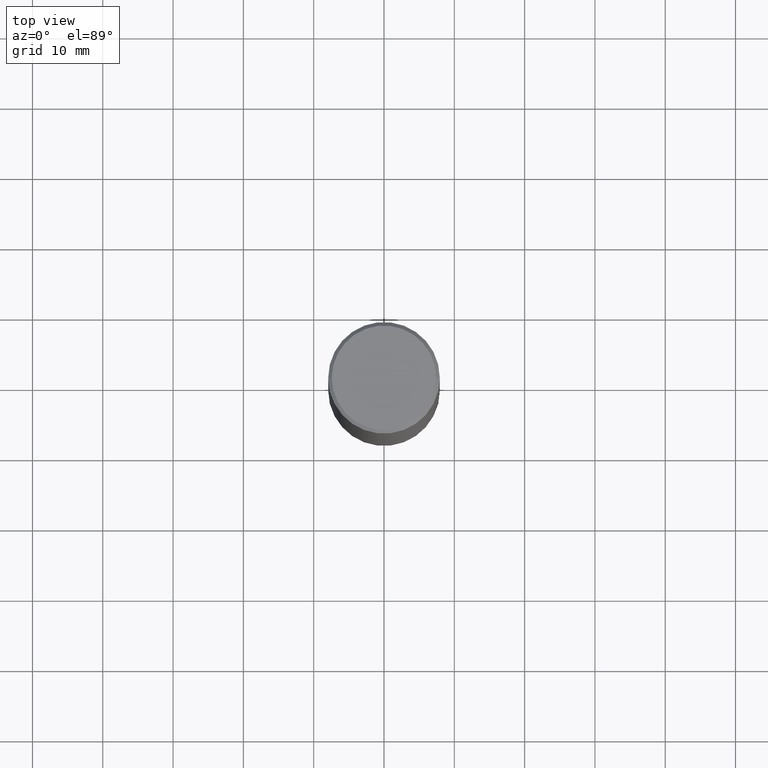
[diagram: clean part render]
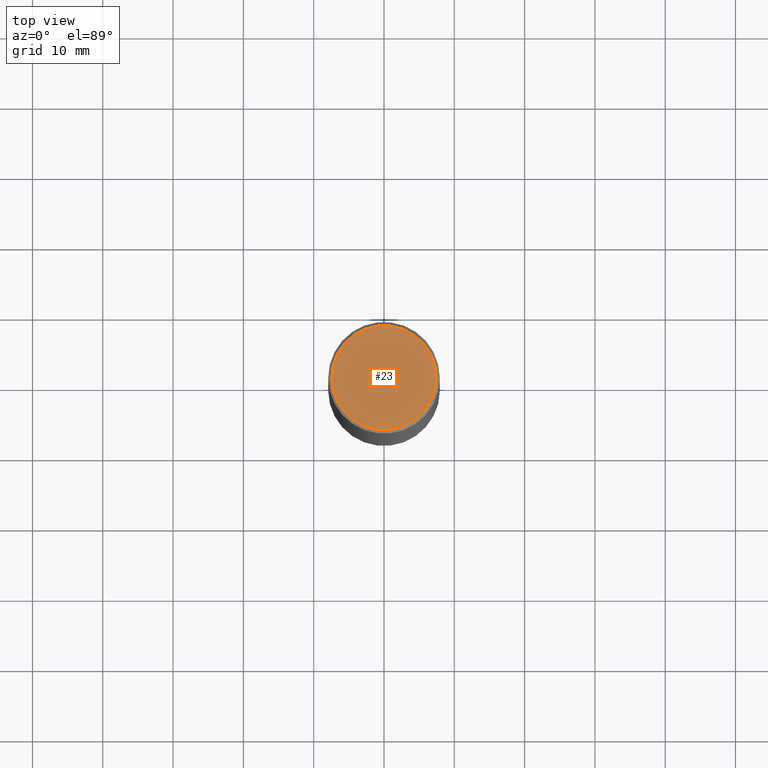
[diagram: same view with one face highlighted and labeled with its STEP entity id]
A machine part, top view. The second image highlights one B-rep face of the part: STEP entity #23.
In plain terms, the highlighted planar face has unit normal (0, -0, -1).
Its self-contained STEP definition (entity closure, byte-faithful):
#19 = DIRECTION ( 'NONE',  ( -2.445468806185136597E-29, 3.491481338843145583E-15, 1.000000000000000000 ) ) ;
#23 = ADVANCED_FACE ( 'NONE', ( #159 ), #315, .F. ) ;
#28 = ORIENTED_EDGE ( 'NONE', *, *, #291, .T. ) ;
#46 = EDGE_LOOP ( 'NONE', ( #113, #28 ) ) ;
#89 = DIRECTION ( 'NONE',  ( 1.000000000000000000, -6.982962677686266711E-15, 4.876067333457705732E-29 ) ) ;
#113 = ORIENTED_EDGE ( 'NONE', *, *, #337, .T. ) ;
#119 = DIRECTION ( 'NONE',  ( 2.438088387897960049E-29, -3.491481338843145188E-15, -1.000000000000000000 ) ) ;
#157 = DIRECTION ( 'NONE',  ( -2.445468806185136597E-29, 3.491481338843145583E-15, 1.000000000000000000 ) ) ;
#159 = FACE_OUTER_BOUND ( 'NONE', #46, .T. ) ;
#161 = VERTEX_POINT ( 'NONE', #454 ) ;
#249 = CIRCLE ( 'NONE', #294, 0.2924999999999990385 ) ;
#291 = EDGE_CURVE ( 'NONE', #161, #461, #388, .T. ) ;
#292 = AXIS2_PLACEMENT_3D ( 'NONE', #462, #119, #402 ) ;
#294 = AXIS2_PLACEMENT_3D ( 'NONE', #431, #19, #89 ) ;
#315 = PLANE ( 'NONE',  #292 ) ;
#337 = EDGE_CURVE ( 'NONE', #461, #161, #249, .T. ) ;
#359 = DIRECTION ( 'NONE',  ( 1.000000000000000000, -6.982962677686266711E-15, 4.876067333457705732E-29 ) ) ;
#360 = CARTESIAN_POINT ( 'NONE',  ( -0.2924999999999990385, 2.077431396611657878E-15, 4.268512490086005323E-18 ) ) ;
#388 = CIRCLE ( 'NONE', #405, 0.2924999999999990385 ) ;
#391 = CARTESIAN_POINT ( 'NONE',  ( -1.043851414335219820E-46, 1.490343170380447200E-32, 4.268512490100411279E-18 ) ) ;
#402 = DIRECTION ( 'NONE',  ( -1.000000000000000000, 6.982962677686265922E-15, -4.876176775795935793E-29 ) ) ;
#405 = AXIS2_PLACEMENT_3D ( 'NONE', #391, #157, #359 ) ;
#431 = CARTESIAN_POINT ( 'NONE',  ( -1.043851414335219820E-46, 1.490343170380447200E-32, 4.268512490100411279E-18 ) ) ;
#454 = CARTESIAN_POINT ( 'NONE',  ( 0.2924999999999990385, -2.110215457714314014E-15, 4.268512490114932791E-18 ) ) ;
#461 = VERTEX_POINT ( 'NONE', #360 ) ;
#462 = CARTESIAN_POINT ( 'NONE',  ( 2.042516583223225834E-15, 0.2924999999999990385, -1.019124035366566451E-15 ) ) ;